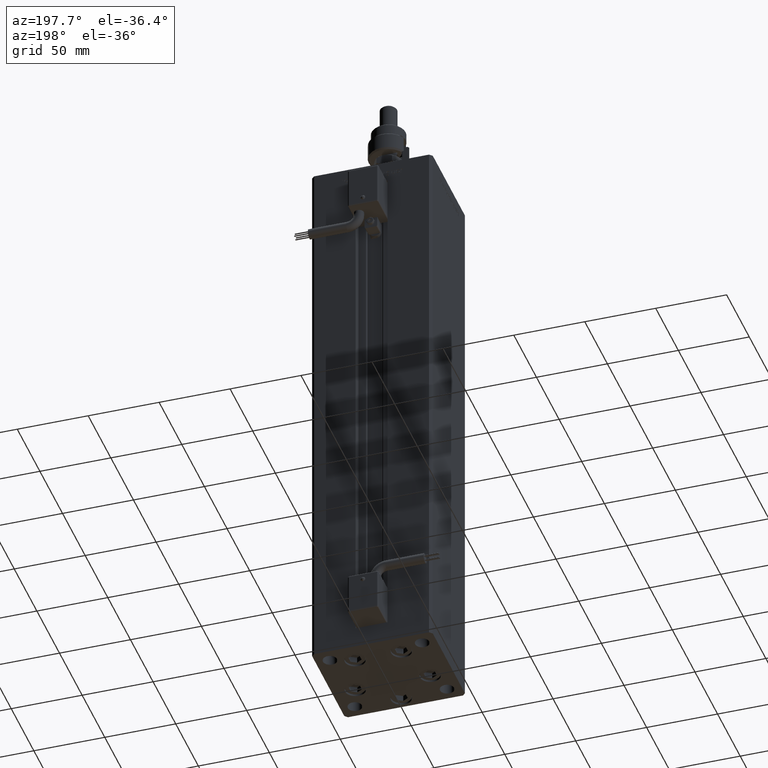
[diagram: clean part render]
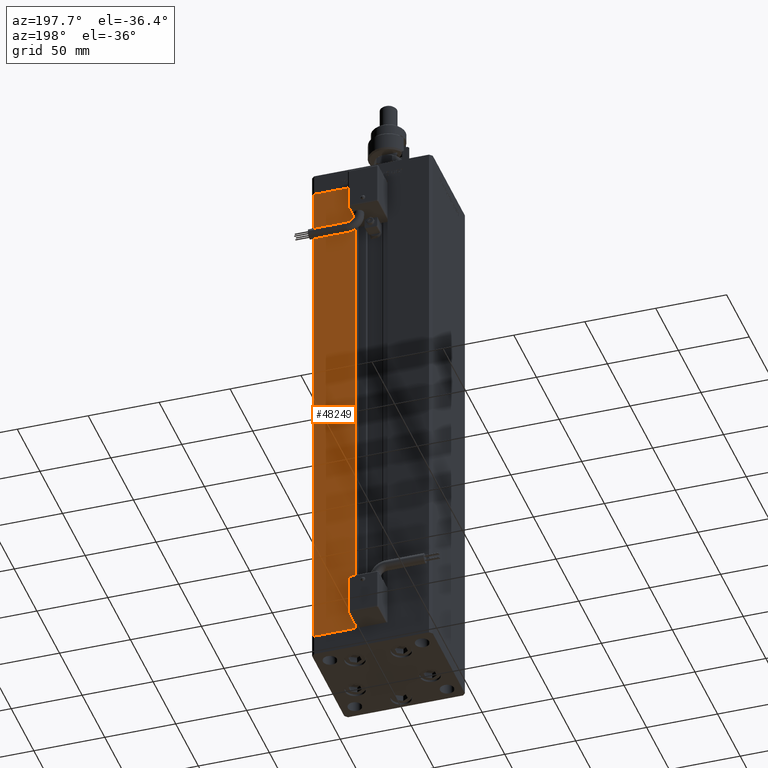
[diagram: same view with one face highlighted and labeled with its STEP entity id]
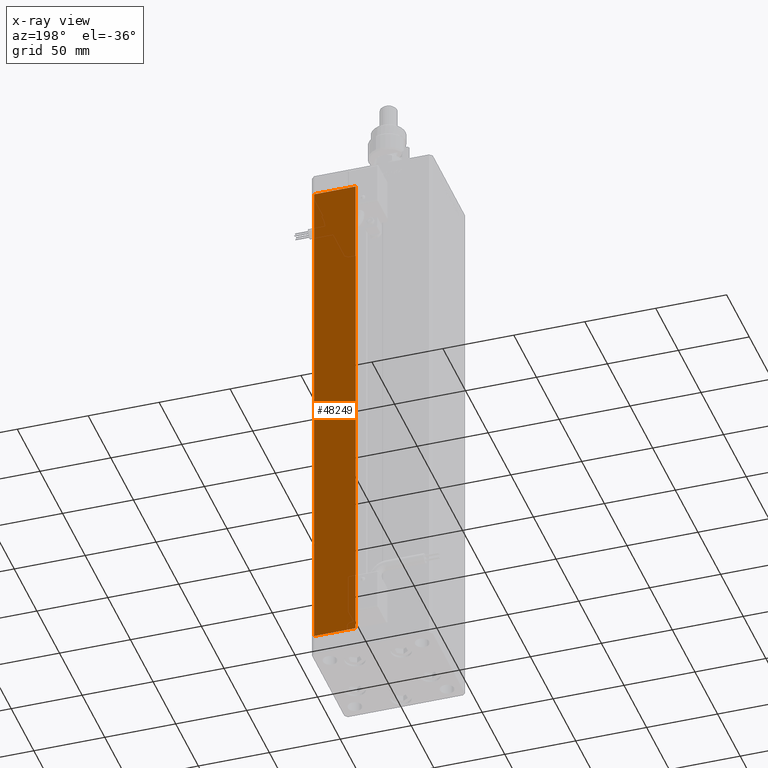
[diagram: x-ray of the same camera — body ghosted, the highlighted face saturated]
A machine part, auxiliary view. The second image highlights one B-rep face of the part: STEP entity #48249.
The next image is the same camera in x-ray: the body ghosted, the highlighted face saturated — about 0% of this face is hidden behind the body in this view.
In plain terms, the highlighted planar face has unit normal (-0, -1, 0).
Its self-contained STEP definition (entity closure, byte-faithful):
#313 = FACE_OUTER_BOUND ( 'NONE', #55023, .T. ) ;
#819 = CARTESIAN_POINT ( 'NONE',  ( 11.24999999999999289, 37.50000000000000000, 368.5000000000000000 ) ) ;
#5011 = CARTESIAN_POINT ( 'NONE',  ( -11.25000000000000000, 37.50000000000000000, 368.5000000000000000 ) ) ;
#8510 = LINE ( 'NONE', #23152, #51779 ) ;
#8753 = CARTESIAN_POINT ( 'NONE',  ( 40.50000000000000000, 37.50000000000000711, 368.5000000000000000 ) ) ;
#9103 = DIRECTION ( 'NONE',  ( -1.000000000000000000, 2.372271420139223331E-16, 0.000000000000000000 ) ) ;
#9442 = CARTESIAN_POINT ( 'NONE',  ( -11.25000000000000000, 37.50000000000000000, 368.5000000000000000 ) ) ;
#10606 = ORIENTED_EDGE ( 'NONE', *, *, #48404, .T. ) ;
#12394 = VECTOR ( 'NONE', #17939, 1000.000000000000000 ) ;
#12853 = VERTEX_POINT ( 'NONE', #44721 ) ;
#14056 = EDGE_CURVE ( 'NONE', #46659, #49483, #19760, .T. ) ;
#15243 = DIRECTION ( 'NONE',  ( -0.000000000000000000, -0.000000000000000000, -1.000000000000000000 ) ) ;
#17939 = DIRECTION ( 'NONE',  ( 1.000000000000000000, 0.000000000000000000, 0.000000000000000000 ) ) ;
#19760 = LINE ( 'NONE', #32977, #41772 ) ;
#22282 = CARTESIAN_POINT ( 'NONE',  ( 11.25000000000000000, 37.50000000000000000, 0.000000000000000000 ) ) ;
#23152 = CARTESIAN_POINT ( 'NONE',  ( -11.25000000000000000, 37.50000000000000000, 0.000000000000000000 ) ) ;
#25507 = ORIENTED_EDGE ( 'NONE', *, *, #32747, .T. ) ;
#26446 = LINE ( 'NONE', #9442, #12394 ) ;
#27000 = DIRECTION ( 'NONE',  ( 1.000000000000000000, -2.372271420139223331E-16, 0.000000000000000000 ) ) ;
#28242 = ORIENTED_EDGE ( 'NONE', *, *, #57234, .T. ) ;
#30159 = VERTEX_POINT ( 'NONE', #8753 ) ;
#32747 = EDGE_CURVE ( 'NONE', #49483, #30159, #26446, .T. ) ;
#32977 = CARTESIAN_POINT ( 'NONE',  ( 11.25000000000000000, 37.50000000000000000, 0.000000000000000000 ) ) ;
#35801 = DIRECTION ( 'NONE',  ( -2.372271420139223331E-16, -1.000000000000000000, 0.000000000000000000 ) ) ;
#37518 = LINE ( 'NONE', #55411, #39059 ) ;
#39059 = VECTOR ( 'NONE', #15243, 1000.000000000000000 ) ;
#40423 = ORIENTED_EDGE ( 'NONE', *, *, #14056, .T. ) ;
#41772 = VECTOR ( 'NONE', #54972, 1000.000000000000000 ) ;
#44721 = CARTESIAN_POINT ( 'NONE',  ( 40.50000000000000000, 37.50000000000000711, 0.000000000000000000 ) ) ;
#46659 = VERTEX_POINT ( 'NONE', #22282 ) ;
#48249 = ADVANCED_FACE ( 'NONE', ( #313 ), #54280, .F. ) ;
#48404 = EDGE_CURVE ( 'NONE', #30159, #12853, #37518, .T. ) ;
#49483 = VERTEX_POINT ( 'NONE', #819 ) ;
#51779 = VECTOR ( 'NONE', #9103, 1000.000000000000000 ) ;
#54280 = PLANE ( 'NONE',  #56852 ) ;
#54972 = DIRECTION ( 'NONE',  ( -0.000000000000000000, -0.000000000000000000, 1.000000000000000000 ) ) ;
#55023 = EDGE_LOOP ( 'NONE', ( #28242, #40423, #25507, #10606 ) ) ;
#55411 = CARTESIAN_POINT ( 'NONE',  ( 40.50000000000000000, 37.50000000000000711, 368.5000000000000000 ) ) ;
#56852 = AXIS2_PLACEMENT_3D ( 'NONE', #5011, #35801, #27000 ) ;
#57234 = EDGE_CURVE ( 'NONE', #12853, #46659, #8510, .T. ) ;